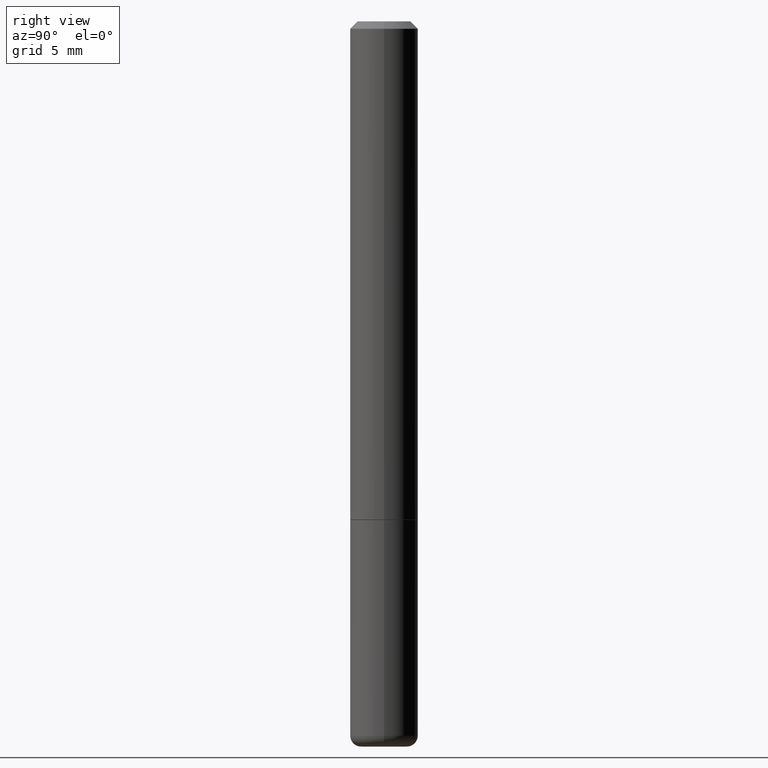
[diagram: clean part render]
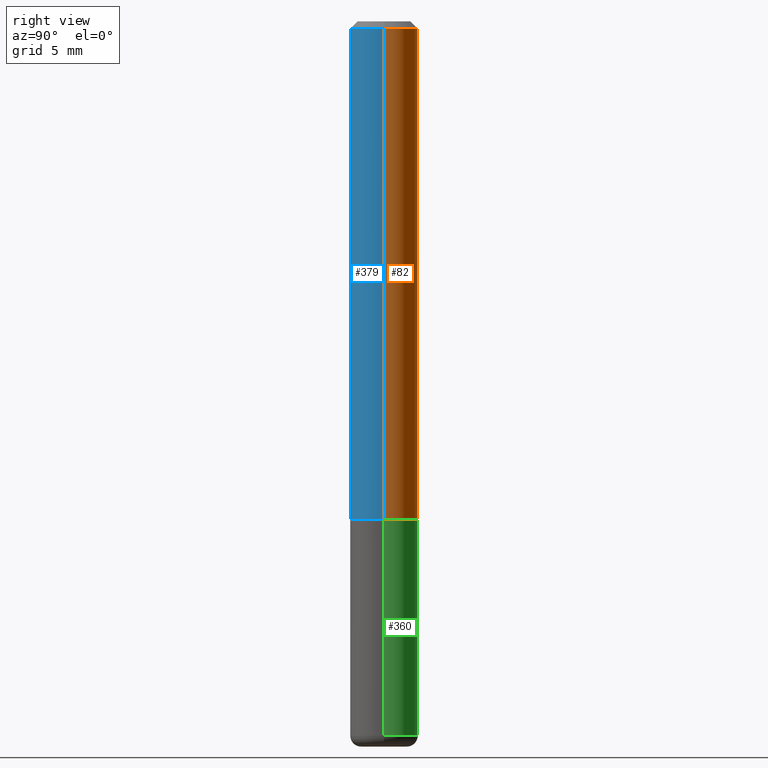
[diagram: same view with three faces highlighted in distinct colors, each labeled with its STEP entity id]
A machine part, right view with three faces highlighted in distinct colors.
Their STEP definitions:

[orange] entity #82 — the highlighted cylindrical surface (edge-blend (fillet) strip) has radius 2.3812 mm, axis along (-0, 0, 1).
#11 = DIRECTION ( 'NONE',  ( -2.445468806185136597E-29, 3.491481338843145583E-15, 1.000000000000000000 ) ) ;
#20 = VERTEX_POINT ( 'NONE', #268 ) ;
#28 = AXIS2_PLACEMENT_3D ( 'NONE', #318, #11, #382 ) ;
#39 = DIRECTION ( 'NONE',  ( 1.000000000000000000, -6.982962677686267499E-15, 0.000000000000000000 ) ) ;
#52 = VERTEX_POINT ( 'NONE', #108 ) ;
#72 = DIRECTION ( 'NONE',  ( 1.000000000000000000, -6.982962677686266711E-15, 4.876176775795935793E-29 ) ) ;
#82 = ADVANCED_FACE ( 'NONE', ( #385 ), #207, .T. ) ;
#108 = CARTESIAN_POINT ( 'NONE',  ( -0.09374999999999981959, 5.848231242562233185E-16, -0.02000000000000002123 ) ) ;
#112 = CARTESIAN_POINT ( 'NONE',  ( 0.09375000000000001388, -5.451948110603568638E-15, -1.373999999999999888 ) ) ;
#113 = CARTESIAN_POINT ( 'NONE',  ( 4.890937612370278413E-31, -6.982962677686297772E-17, -0.02000000000000002123 ) ) ;
#120 = AXIS2_PLACEMENT_3D ( 'NONE', #113, #243, #39 ) ;
#145 = EDGE_CURVE ( 'NONE', #365, #20, #247, .T. ) ;
#160 = EDGE_CURVE ( 'NONE', #395, #52, #330, .T. ) ;
#180 = CARTESIAN_POINT ( 'NONE',  ( -0.09375000000000001388, -1.767428678398575728E-15, -1.373999999999999888 ) ) ;
#184 = ORIENTED_EDGE ( 'NONE', *, *, #407, .T. ) ;
#185 = DIRECTION ( 'NONE',  ( -2.445468806185136877E-29, 3.491481338843145188E-15, 1.000000000000000000 ) ) ;
#186 = ORIENTED_EDGE ( 'NONE', *, *, #391, .F. ) ;
#207 = CYLINDRICAL_SURFACE ( 'NONE', #276, 0.09374999999999991673 ) ;
#243 = DIRECTION ( 'NONE',  ( -2.445468806185136597E-29, 3.491481338843145583E-15, 1.000000000000000000 ) ) ;
#247 = LINE ( 'NONE', #415, #439 ) ;
#266 = DIRECTION ( 'NONE',  ( -2.445468806185136877E-29, 3.491481338843145188E-15, 1.000000000000000000 ) ) ;
#268 = CARTESIAN_POINT ( 'NONE',  ( 0.09374999999999981959, -7.130013140679428044E-16, -0.02000000000000002123 ) ) ;
#276 = AXIS2_PLACEMENT_3D ( 'NONE', #314, #387, #72 ) ;
#278 = ORIENTED_EDGE ( 'NONE', *, *, #145, .F. ) ;
#311 = CIRCLE ( 'NONE', #28, 0.09375000000000001388 ) ;
#314 = CARTESIAN_POINT ( 'NONE',  ( 0.000000000000000000, 0.000000000000000000, 0.000000000000000000 ) ) ;
#318 = CARTESIAN_POINT ( 'NONE',  ( 3.360074139698377778E-29, -4.797295359570481134E-15, -1.373999999999999888 ) ) ;
#330 = LINE ( 'NONE', #355, #357 ) ;
#355 = CARTESIAN_POINT ( 'NONE',  ( -0.09374999999999991673, 6.661338147750933326E-16, -4.611501647113969791E-30 ) ) ;
#357 = VECTOR ( 'NONE', #185, 39.37007874015748143 ) ;
#365 = VERTEX_POINT ( 'NONE', #112 ) ;
#382 = DIRECTION ( 'NONE',  ( 1.000000000000000000, -6.982962677686261189E-15, 0.000000000000000000 ) ) ;
#385 = FACE_OUTER_BOUND ( 'NONE', #432, .T. ) ;
#387 = DIRECTION ( 'NONE',  ( -2.445468806185136597E-29, 3.491481338843145583E-15, 1.000000000000000000 ) ) ;
#391 = EDGE_CURVE ( 'NONE', #20, #52, #419, .T. ) ;
#395 = VERTEX_POINT ( 'NONE', #180 ) ;
#407 = EDGE_CURVE ( 'NONE', #365, #395, #311, .T. ) ;
#415 = CARTESIAN_POINT ( 'NONE',  ( 0.09374999999999991673, -6.546527510330869125E-16, 4.571415727308685602E-30 ) ) ;
#419 = CIRCLE ( 'NONE', #120, 0.09374999999999981959 ) ;
#432 = EDGE_LOOP ( 'NONE', ( #184, #436, #186, #278 ) ) ;
#436 = ORIENTED_EDGE ( 'NONE', *, *, #160, .T. ) ;
#439 = VECTOR ( 'NONE', #266, 39.37007874015748143 ) ;

[blue] entity #379 — the highlighted cylindrical surface (edge-blend (fillet) strip) has radius 2.3812 mm, axis along (-0, 0, 1).
#3 = EDGE_CURVE ( 'NONE', #395, #365, #35, .T. ) ;
#20 = VERTEX_POINT ( 'NONE', #268 ) ;
#32 = DIRECTION ( 'NONE',  ( -2.445468806185136597E-29, 3.491481338843145583E-15, 1.000000000000000000 ) ) ;
#35 = CIRCLE ( 'NONE', #260, 0.09375000000000001388 ) ;
#45 = FACE_OUTER_BOUND ( 'NONE', #427, .T. ) ;
#52 = VERTEX_POINT ( 'NONE', #108 ) ;
#67 = DIRECTION ( 'NONE',  ( -2.445468806185136597E-29, 3.491481338843145583E-15, 1.000000000000000000 ) ) ;
#78 = CIRCLE ( 'NONE', #298, 0.09374999999999981959 ) ;
#89 = ORIENTED_EDGE ( 'NONE', *, *, #117, .F. ) ;
#108 = CARTESIAN_POINT ( 'NONE',  ( -0.09374999999999981959, 5.848231242562233185E-16, -0.02000000000000002123 ) ) ;
#112 = CARTESIAN_POINT ( 'NONE',  ( 0.09375000000000001388, -5.451948110603568638E-15, -1.373999999999999888 ) ) ;
#117 = EDGE_CURVE ( 'NONE', #52, #20, #78, .T. ) ;
#137 = CARTESIAN_POINT ( 'NONE',  ( 4.890937612370278413E-31, -6.982962677686297772E-17, -0.02000000000000002123 ) ) ;
#145 = EDGE_CURVE ( 'NONE', #365, #20, #247, .T. ) ;
#160 = EDGE_CURVE ( 'NONE', #395, #52, #330, .T. ) ;
#162 = ORIENTED_EDGE ( 'NONE', *, *, #145, .T. ) ;
#173 = CARTESIAN_POINT ( 'NONE',  ( 0.000000000000000000, 0.000000000000000000, 0.000000000000000000 ) ) ;
#176 = CYLINDRICAL_SURFACE ( 'NONE', #223, 0.09374999999999991673 ) ;
#180 = CARTESIAN_POINT ( 'NONE',  ( -0.09375000000000001388, -1.767428678398575728E-15, -1.373999999999999888 ) ) ;
#185 = DIRECTION ( 'NONE',  ( -2.445468806185136877E-29, 3.491481338843145188E-15, 1.000000000000000000 ) ) ;
#198 = ORIENTED_EDGE ( 'NONE', *, *, #3, .T. ) ;
#223 = AXIS2_PLACEMENT_3D ( 'NONE', #173, #67, #417 ) ;
#247 = LINE ( 'NONE', #415, #439 ) ;
#260 = AXIS2_PLACEMENT_3D ( 'NONE', #406, #32, #307 ) ;
#266 = DIRECTION ( 'NONE',  ( -2.445468806185136877E-29, 3.491481338843145188E-15, 1.000000000000000000 ) ) ;
#268 = CARTESIAN_POINT ( 'NONE',  ( 0.09374999999999981959, -7.130013140679428044E-16, -0.02000000000000002123 ) ) ;
#297 = ORIENTED_EDGE ( 'NONE', *, *, #160, .F. ) ;
#298 = AXIS2_PLACEMENT_3D ( 'NONE', #137, #351, #346 ) ;
#307 = DIRECTION ( 'NONE',  ( 1.000000000000000000, -6.982962677686261189E-15, 0.000000000000000000 ) ) ;
#330 = LINE ( 'NONE', #355, #357 ) ;
#346 = DIRECTION ( 'NONE',  ( 1.000000000000000000, -6.982962677686267499E-15, 0.000000000000000000 ) ) ;
#351 = DIRECTION ( 'NONE',  ( -2.445468806185136597E-29, 3.491481338843145583E-15, 1.000000000000000000 ) ) ;
#355 = CARTESIAN_POINT ( 'NONE',  ( -0.09374999999999991673, 6.661338147750933326E-16, -4.611501647113969791E-30 ) ) ;
#357 = VECTOR ( 'NONE', #185, 39.37007874015748143 ) ;
#365 = VERTEX_POINT ( 'NONE', #112 ) ;
#379 = ADVANCED_FACE ( 'NONE', ( #45 ), #176, .T. ) ;
#395 = VERTEX_POINT ( 'NONE', #180 ) ;
#406 = CARTESIAN_POINT ( 'NONE',  ( 3.360074139698377778E-29, -4.797295359570481134E-15, -1.373999999999999888 ) ) ;
#415 = CARTESIAN_POINT ( 'NONE',  ( 0.09374999999999991673, -6.546527510330869125E-16, 4.571415727308685602E-30 ) ) ;
#417 = DIRECTION ( 'NONE',  ( 1.000000000000000000, -6.982962677686266711E-15, 4.876176775795935793E-29 ) ) ;
#427 = EDGE_LOOP ( 'NONE', ( #297, #198, #162, #89 ) ) ;
#439 = VECTOR ( 'NONE', #266, 39.37007874015748143 ) ;

[green] entity #360 — the highlighted cylindrical surface (edge-blend (fillet) strip) has radius 2.3812 mm, axis along (-0, 0, 1).
#5 = FACE_OUTER_BOUND ( 'NONE', #129, .T. ) ;
#7 = CIRCLE ( 'NONE', #284, 0.09375000000000001388 ) ;
#19 = VERTEX_POINT ( 'NONE', #65 ) ;
#36 = EDGE_CURVE ( 'NONE', #259, #381, #93, .T. ) ;
#43 = CYLINDRICAL_SURFACE ( 'NONE', #377, 0.09374999999999998612 ) ;
#46 = ORIENTED_EDGE ( 'NONE', *, *, #179, .F. ) ;
#58 = DIRECTION ( 'NONE',  ( -2.445468806185136597E-29, 3.491481338843145583E-15, 1.000000000000000000 ) ) ;
#62 = DIRECTION ( 'NONE',  ( 1.000000000000000000, -6.982962677686263555E-15, 0.000000000000000000 ) ) ;
#65 = CARTESIAN_POINT ( 'NONE',  ( 0.09374999999999998612, -7.533014537168982211E-15, -1.970041113957362811 ) ) ;
#77 = CARTESIAN_POINT ( 'NONE',  ( 0.000000000000000000, 0.000000000000000000, 0.000000000000000000 ) ) ;
#93 = LINE ( 'NONE', #233, #218 ) ;
#98 = ORIENTED_EDGE ( 'NONE', *, *, #151, .F. ) ;
#109 = VECTOR ( 'NONE', #423, 39.37007874015748143 ) ;
#129 = EDGE_LOOP ( 'NONE', ( #182, #158, #46, #98 ) ) ;
#138 = DIRECTION ( 'NONE',  ( -2.445468806185136597E-29, 3.491481338843145583E-15, 1.000000000000000000 ) ) ;
#151 = EDGE_CURVE ( 'NONE', #19, #273, #362, .T. ) ;
#158 = ORIENTED_EDGE ( 'NONE', *, *, #36, .T. ) ;
#179 = EDGE_CURVE ( 'NONE', #273, #381, #7, .T. ) ;
#182 = ORIENTED_EDGE ( 'NONE', *, *, #194, .T. ) ;
#194 = EDGE_CURVE ( 'NONE', #19, #259, #375, .T. ) ;
#202 = DIRECTION ( 'NONE',  ( 1.000000000000000000, -6.982962677686261189E-15, 0.000000000000000000 ) ) ;
#218 = VECTOR ( 'NONE', #370, 39.37007874015748143 ) ;
#226 = CARTESIAN_POINT ( 'NONE',  ( 0.09374999999999998612, -6.546527510330874055E-16, 4.571415727308689105E-30 ) ) ;
#232 = CARTESIAN_POINT ( 'NONE',  ( -0.09374999999999998612, -5.173440498747515894E-15, -1.970041113957362811 ) ) ;
#233 = CARTESIAN_POINT ( 'NONE',  ( -0.09374999999999998612, 6.661338147750938256E-16, -4.611501647113973295E-30 ) ) ;
#259 = VERTEX_POINT ( 'NONE', #232 ) ;
#273 = VERTEX_POINT ( 'NONE', #373 ) ;
#281 = DIRECTION ( 'NONE',  ( 1.000000000000000000, -6.982962677686266711E-15, 4.876176775795935793E-29 ) ) ;
#284 = AXIS2_PLACEMENT_3D ( 'NONE', #400, #58, #202 ) ;
#348 = CARTESIAN_POINT ( 'NONE',  ( -0.09375000000000001388, -5.173440498747515894E-15, -1.375000000000000000 ) ) ;
#360 = ADVANCED_FACE ( 'NONE', ( #5 ), #43, .T. ) ;
#362 = LINE ( 'NONE', #226, #109 ) ;
#370 = DIRECTION ( 'NONE',  ( -2.445468806185136877E-29, 3.491481338843145188E-15, 1.000000000000000000 ) ) ;
#373 = CARTESIAN_POINT ( 'NONE',  ( 0.09375000000000001388, -5.455439591942412434E-15, -1.375000000000000000 ) ) ;
#375 = CIRCLE ( 'NONE', #418, 0.09374999999999998612 ) ;
#377 = AXIS2_PLACEMENT_3D ( 'NONE', #77, #138, #281 ) ;
#378 = DIRECTION ( 'NONE',  ( -2.445468806185136597E-29, 3.491481338843145583E-15, 1.000000000000000000 ) ) ;
#381 = VERTEX_POINT ( 'NONE', #348 ) ;
#400 = CARTESIAN_POINT ( 'NONE',  ( 3.362519608504562260E-29, -4.800786840909324930E-15, -1.375000000000000000 ) ) ;
#418 = AXIS2_PLACEMENT_3D ( 'NONE', #435, #378, #62 ) ;
#423 = DIRECTION ( 'NONE',  ( -2.445468806185136877E-29, 3.491481338843145188E-15, 1.000000000000000000 ) ) ;
#435 = CARTESIAN_POINT ( 'NONE',  ( 4.817674091084948534E-29, -6.878361786135894707E-15, -1.970041113957362811 ) ) ;